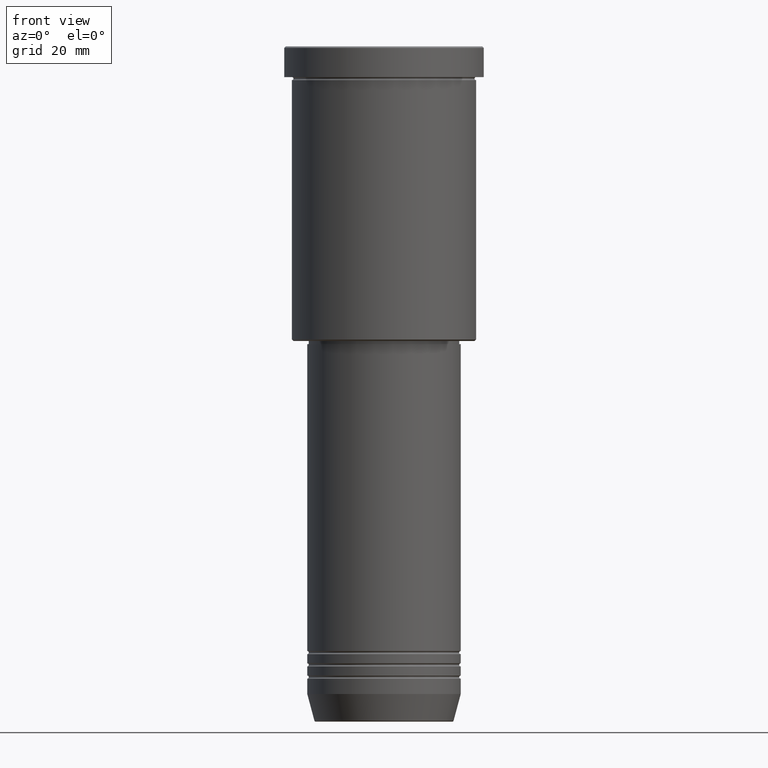
[diagram: clean part render]
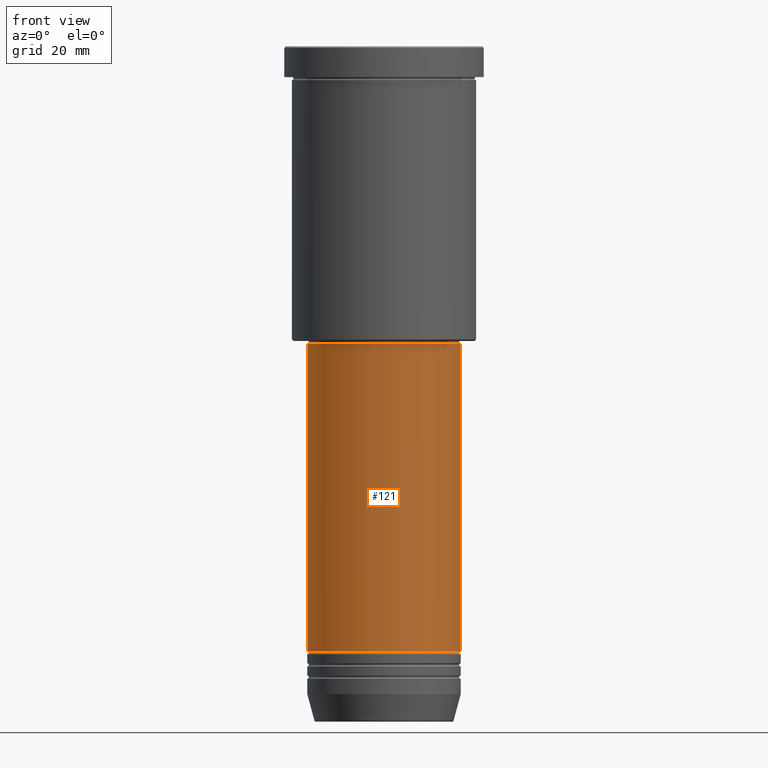
[diagram: same view with one face highlighted and labeled with its STEP entity id]
A machine part, front view. The second image highlights one B-rep face of the part: STEP entity #121.
In plain terms, the highlighted cylindrical surface (partial cylindrical patch) has radius 25 mm, axis along (-0, -0, 1).
Its self-contained STEP definition (entity closure, byte-faithful):
#24 = CARTESIAN_POINT ( 'NONE',  ( 25.00000000000000000, 0.000000000000000000, -196.9999999999999716 ) ) ;
#67 = VECTOR ( 'NONE', #69, 1000.000000000000000 ) ;
#69 = DIRECTION ( 'NONE',  ( -0.000000000000000000, -0.000000000000000000, 1.000000000000000000 ) ) ;
#94 = DIRECTION ( 'NONE',  ( -0.000000000000000000, -0.000000000000000000, 1.000000000000000000 ) ) ;
#121 = ADVANCED_FACE ( 'NONE', ( #185 ), #1163, .T. ) ;
#139 = CARTESIAN_POINT ( 'NONE',  ( 25.00000000000000355, 0.000000000000000000, 0.000000000000000000 ) ) ;
#182 = AXIS2_PLACEMENT_3D ( 'NONE', #594, #708, #417 ) ;
#185 = FACE_OUTER_BOUND ( 'NONE', #610, .T. ) ;
#223 = DIRECTION ( 'NONE',  ( -0.000000000000000000, -0.000000000000000000, 1.000000000000000000 ) ) ;
#241 = VECTOR ( 'NONE', #223, 1000.000000000000000 ) ;
#314 = AXIS2_PLACEMENT_3D ( 'NONE', #1000, #454, #1113 ) ;
#336 = CARTESIAN_POINT ( 'NONE',  ( 0.000000000000000000, 0.000000000000000000, 0.000000000000000000 ) ) ;
#350 = VERTEX_POINT ( 'NONE', #835 ) ;
#382 = VERTEX_POINT ( 'NONE', #756 ) ;
#404 = AXIS2_PLACEMENT_3D ( 'NONE', #336, #94, #934 ) ;
#417 = DIRECTION ( 'NONE',  ( 1.000000000000000000, 0.000000000000000000, 0.000000000000000000 ) ) ;
#418 = ORIENTED_EDGE ( 'NONE', *, *, #1116, .F. ) ;
#454 = DIRECTION ( 'NONE',  ( -0.000000000000000000, -0.000000000000000000, 1.000000000000000000 ) ) ;
#469 = LINE ( 'NONE', #586, #241 ) ;
#514 = ORIENTED_EDGE ( 'NONE', *, *, #903, .T. ) ;
#569 = ORIENTED_EDGE ( 'NONE', *, *, #885, .T. ) ;
#586 = CARTESIAN_POINT ( 'NONE',  ( -25.00000000000000355, 3.061616997868383437E-15, 0.000000000000000000 ) ) ;
#594 = CARTESIAN_POINT ( 'NONE',  ( 0.000000000000000000, 0.000000000000000000, -196.9999999999999716 ) ) ;
#610 = EDGE_LOOP ( 'NONE', ( #418, #569, #514, #854 ) ) ;
#684 = CIRCLE ( 'NONE', #314, 25.00000000000000711 ) ;
#708 = DIRECTION ( 'NONE',  ( -0.000000000000000000, -0.000000000000000000, 1.000000000000000000 ) ) ;
#713 = CARTESIAN_POINT ( 'NONE',  ( 25.00000000000000711, 0.000000000000000000, -97.00000000000002842 ) ) ;
#756 = CARTESIAN_POINT ( 'NONE',  ( -25.00000000000001066, 3.061616997868384226E-15, -97.00000000000002842 ) ) ;
#835 = CARTESIAN_POINT ( 'NONE',  ( -25.00000000000000000, 3.061616997868383437E-15, -196.9999999999999716 ) ) ;
#854 = ORIENTED_EDGE ( 'NONE', *, *, #1092, .F. ) ;
#885 = EDGE_CURVE ( 'NONE', #350, #1143, #1106, .T. ) ;
#901 = LINE ( 'NONE', #139, #67 ) ;
#903 = EDGE_CURVE ( 'NONE', #1143, #932, #901, .T. ) ;
#932 = VERTEX_POINT ( 'NONE', #713 ) ;
#934 = DIRECTION ( 'NONE',  ( 1.000000000000000000, 0.000000000000000000, 0.000000000000000000 ) ) ;
#1000 = CARTESIAN_POINT ( 'NONE',  ( 0.000000000000000000, 0.000000000000000000, -97.00000000000002842 ) ) ;
#1092 = EDGE_CURVE ( 'NONE', #382, #932, #684, .T. ) ;
#1106 = CIRCLE ( 'NONE', #182, 25.00000000000000000 ) ;
#1113 = DIRECTION ( 'NONE',  ( 1.000000000000000000, 0.000000000000000000, 0.000000000000000000 ) ) ;
#1116 = EDGE_CURVE ( 'NONE', #350, #382, #469, .T. ) ;
#1143 = VERTEX_POINT ( 'NONE', #24 ) ;
#1163 = CYLINDRICAL_SURFACE ( 'NONE', #404, 25.00000000000000355 ) ;